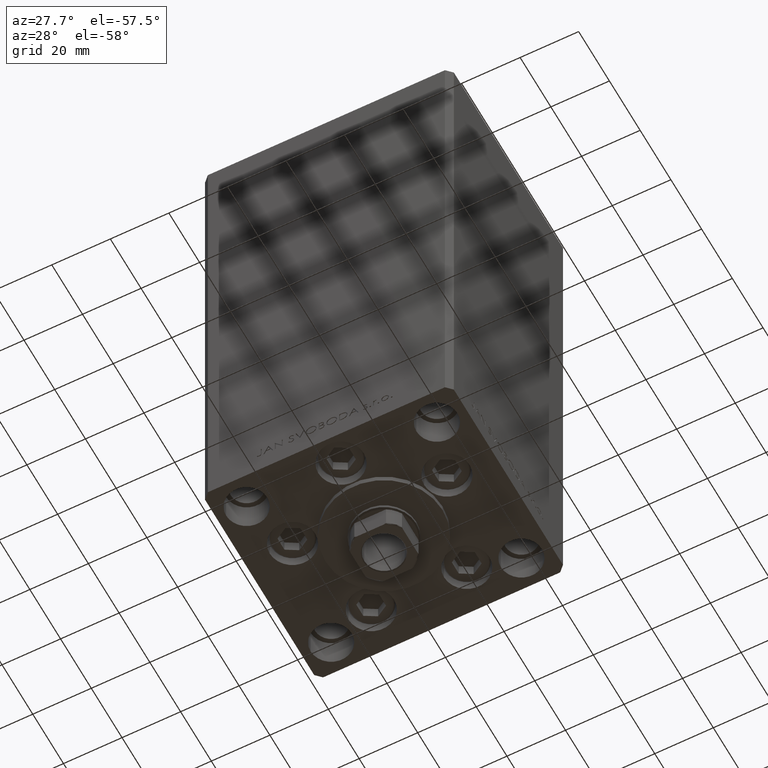
[diagram: clean part render]
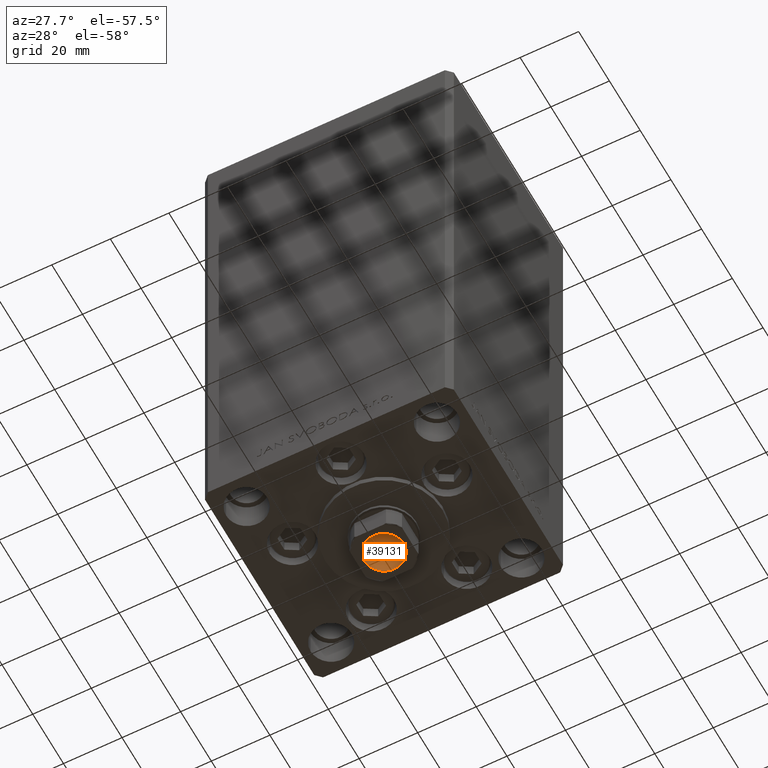
[diagram: same view with one face highlighted and labeled with its STEP entity id]
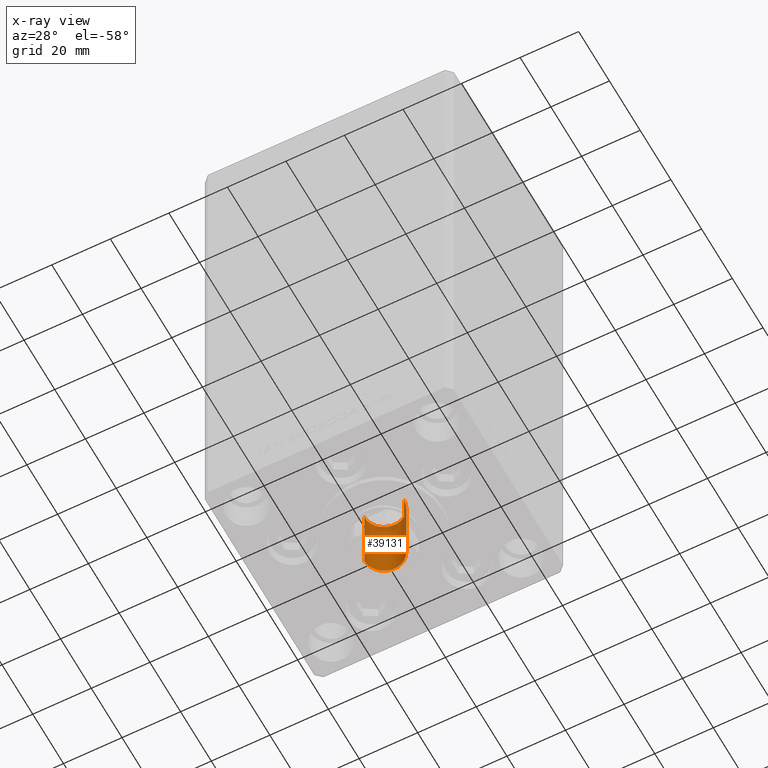
[diagram: x-ray of the same camera — body ghosted, the highlighted face saturated]
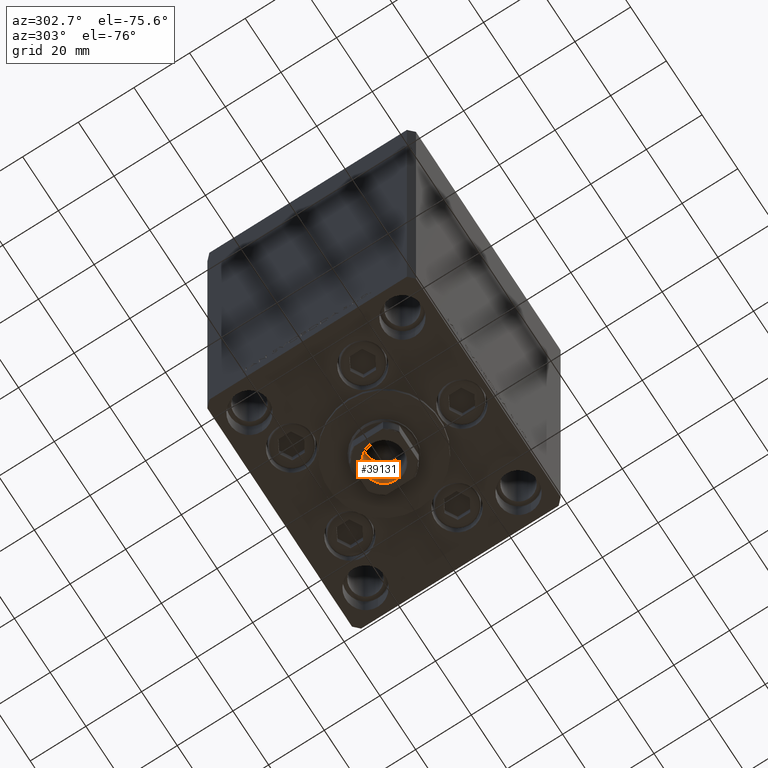
[diagram: same view with one face highlighted and labeled with its STEP entity id]
A machine part, auxiliary view. The second image highlights one B-rep face of the part: STEP entity #39131.
The next image is the same camera in x-ray: the body ghosted, the highlighted face saturated — about 7% of this face is hidden behind the body in this view.
A second angle (auxiliary view) of the same face is appended — the face is thin or edge-on in the first view.
In plain terms, the highlighted cylindrical surface (edge-blend (fillet) strip) has radius 6.75 mm, axis along (0, 0, -1).
Its self-contained STEP definition (entity closure, byte-faithful):
#1238 = ORIENTED_EDGE ( 'NONE', *, *, #3496, .T. ) ;
#1404 = DIRECTION ( 'NONE',  ( -0.000000000000000000, -0.000000000000000000, 1.000000000000000000 ) ) ;
#1737 = VERTEX_POINT ( 'NONE', #19564 ) ;
#2092 = VERTEX_POINT ( 'NONE', #26085 ) ;
#3496 = EDGE_CURVE ( 'NONE', #1737, #47917, #28853, .T. ) ;
#5399 = FACE_OUTER_BOUND ( 'NONE', #39101, .T. ) ;
#7076 = CARTESIAN_POINT ( 'NONE',  ( 6.749999999999995559, 0.000000000000000000, 155.7500000000000000 ) ) ;
#8372 = ORIENTED_EDGE ( 'NONE', *, *, #16053, .T. ) ;
#10094 = CARTESIAN_POINT ( 'NONE',  ( 0.000000000000000000, 0.000000000000000000, 155.7500000000000000 ) ) ;
#11456 = DIRECTION ( 'NONE',  ( 0.000000000000000000, 0.000000000000000000, 1.000000000000000000 ) ) ;
#13335 = AXIS2_PLACEMENT_3D ( 'NONE', #10094, #16767, #46980 ) ;
#15610 = EDGE_CURVE ( 'NONE', #1737, #28434, #34005, .T. ) ;
#16053 = EDGE_CURVE ( 'NONE', #47917, #2092, #34815, .T. ) ;
#16475 = DIRECTION ( 'NONE',  ( 1.000000000000000000, 0.000000000000000000, 0.000000000000000000 ) ) ;
#16713 = CARTESIAN_POINT ( 'NONE',  ( 0.000000000000000000, 0.000000000000000000, 130.7500000000000000 ) ) ;
#16767 = DIRECTION ( 'NONE',  ( -0.000000000000000000, -0.000000000000000000, 1.000000000000000000 ) ) ;
#17860 = CARTESIAN_POINT ( 'NONE',  ( -6.749999999999995559, 8.266365894244628417E-16, 155.7500000000000000 ) ) ;
#18751 = EDGE_CURVE ( 'NONE', #28434, #2092, #36670, .T. ) ;
#19564 = CARTESIAN_POINT ( 'NONE',  ( 6.749999999999993783, 0.000000000000000000, 130.7500000000000000 ) ) ;
#22085 = CARTESIAN_POINT ( 'NONE',  ( 0.000000000000000000, 0.000000000000000000, 155.4499999999999886 ) ) ;
#22177 = AXIS2_PLACEMENT_3D ( 'NONE', #22085, #11456, #22824 ) ;
#22824 = DIRECTION ( 'NONE',  ( 1.000000000000000000, 0.000000000000000000, 0.000000000000000000 ) ) ;
#22872 = CARTESIAN_POINT ( 'NONE',  ( -6.749999999999993783, 8.266365894244626445E-16, 130.7500000000000000 ) ) ;
#23412 = CARTESIAN_POINT ( 'NONE',  ( 6.749999999999995559, 0.000000000000000000, 155.4499999999999886 ) ) ;
#26085 = CARTESIAN_POINT ( 'NONE',  ( -6.749999999999995559, 8.266365894244628417E-16, 155.4499999999999886 ) ) ;
#28434 = VERTEX_POINT ( 'NONE', #22872 ) ;
#28853 = LINE ( 'NONE', #7076, #42000 ) ;
#30644 = ORIENTED_EDGE ( 'NONE', *, *, #18751, .F. ) ;
#30974 = VECTOR ( 'NONE', #36912, 1000.000000000000000 ) ;
#34005 = CIRCLE ( 'NONE', #44306, 6.749999999999993783 ) ;
#34138 = ORIENTED_EDGE ( 'NONE', *, *, #15610, .F. ) ;
#34815 = CIRCLE ( 'NONE', #22177, 6.749999999999995559 ) ;
#36670 = LINE ( 'NONE', #17860, #30974 ) ;
#36912 = DIRECTION ( 'NONE',  ( -0.000000000000000000, -0.000000000000000000, 1.000000000000000000 ) ) ;
#39101 = EDGE_LOOP ( 'NONE', ( #30644, #34138, #1238, #8372 ) ) ;
#39131 = ADVANCED_FACE ( 'NONE', ( #5399 ), #40027, .F. ) ;
#40027 = CYLINDRICAL_SURFACE ( 'NONE', #13335, 6.749999999999995559 ) ;
#40480 = DIRECTION ( 'NONE',  ( -0.000000000000000000, -0.000000000000000000, 1.000000000000000000 ) ) ;
#42000 = VECTOR ( 'NONE', #40480, 1000.000000000000000 ) ;
#44306 = AXIS2_PLACEMENT_3D ( 'NONE', #16713, #1404, #16475 ) ;
#46980 = DIRECTION ( 'NONE',  ( 1.000000000000000000, 0.000000000000000000, 0.000000000000000000 ) ) ;
#47917 = VERTEX_POINT ( 'NONE', #23412 ) ;